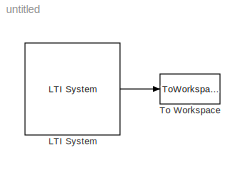
MODEL untitled
KIND model
BLOCK [Reference] LTI System  REF=cstblocks/LTI System
  IC = []
  Ports = [1, 1]
  SID = 4
  SourceBlock = cstblocks/LTI System
  SourceType = LTI Block
  sys = tf(1,[1 2 0])
BLOCK [ToWorkspace] To Workspace
  FixptAsFi = on
  MaxDataPoints = inf
  Ports = [1]
  SID = 3
  SampleTime = -1
  VariableName = G
LINE LTI System:1 -> To Workspace:1
